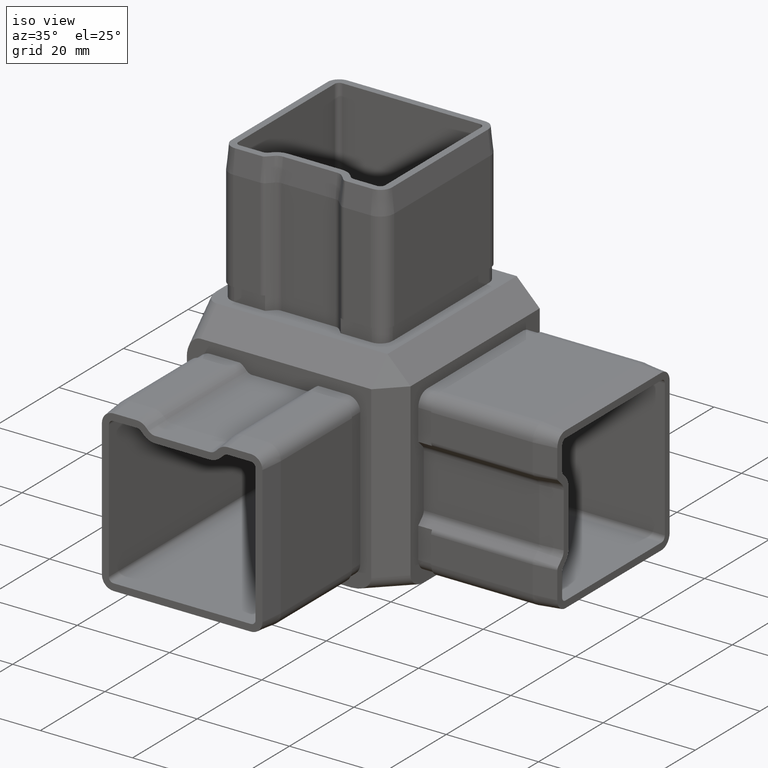
[diagram: clean part render]
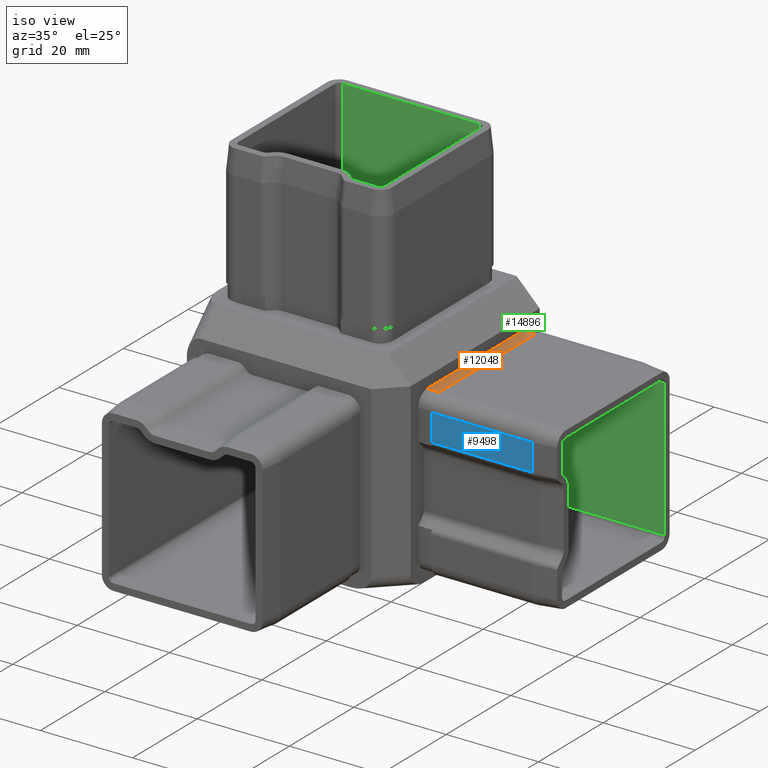
[diagram: same view with three faces highlighted in distinct colors, each labeled with its STEP entity id]
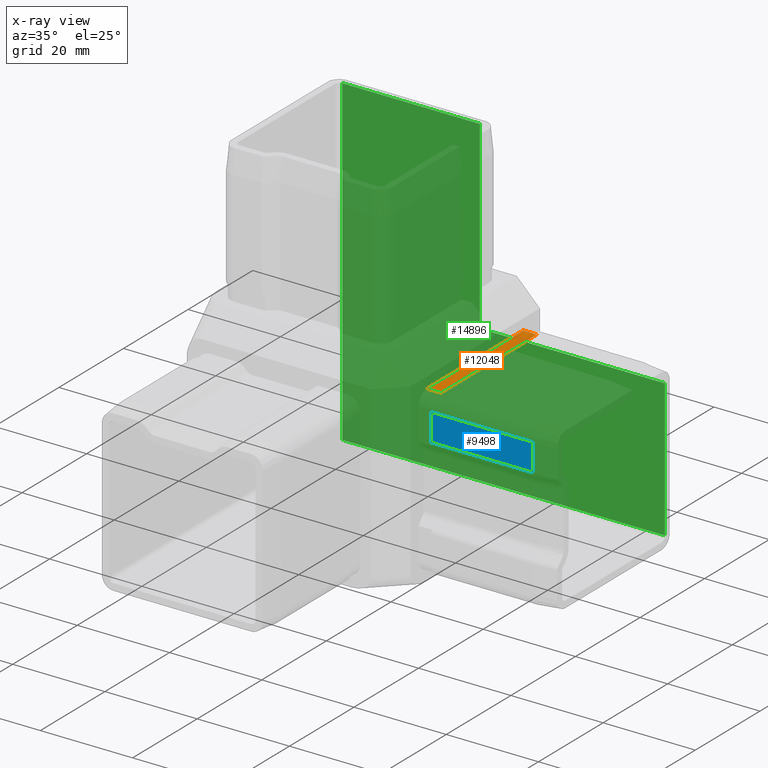
[diagram: x-ray of the same camera — body ghosted, the three highlighted faces saturated]
A machine part, iso view with three faces highlighted in distinct colors.
The next image is the same camera in x-ray (body ghosted, the three faces saturated) — at least one of them is partly hidden behind the body in this view.
Their STEP definitions:

[orange] entity #12048 — the highlighted planar face has unit normal (0, -0, 1).
#1062 = EDGE_CURVE ( 'NONE', #14799, #3133, #3084, .T. ) ;
#1876 = CARTESIAN_POINT ( 'NONE',  ( 25.50000000000000400, -12.40000000000000200, 15.09999999999999400 ) ) ;
#2153 = VECTOR ( 'NONE', #7245, 1000.000000000000000 ) ;
#2474 = ORIENTED_EDGE ( 'NONE', *, *, #6389, .T. ) ;
#2592 = LINE ( 'NONE', #10003, #2153 ) ;
#3084 = LINE ( 'NONE', #1876, #17591 ) ;
#3133 = VERTEX_POINT ( 'NONE', #7703 ) ;
#3662 = VERTEX_POINT ( 'NONE', #18186 ) ;
#4089 = PLANE ( 'NONE',  #17671 ) ;
#5608 = EDGE_LOOP ( 'NONE', ( #2474, #13633, #17023, #15169 ) ) ;
#6389 = EDGE_CURVE ( 'NONE', #14356, #3662, #18687, .T. ) ;
#6559 = EDGE_CURVE ( 'NONE', #3662, #3133, #2592, .T. ) ;
#7245 = DIRECTION ( 'NONE',  ( 1.164243943608595400E-016, -1.000000000000000000, -1.164243943608595400E-016 ) ) ;
#7703 = CARTESIAN_POINT ( 'NONE',  ( 22.50000000000000400, -12.40000000000000200, 15.09999999999999400 ) ) ;
#7927 = EDGE_CURVE ( 'NONE', #14356, #14799, #18406, .T. ) ;
#7960 = CARTESIAN_POINT ( 'NONE',  ( 25.50000000000000400, -12.40000000000000200, 15.09999999999999400 ) ) ;
#8381 = DIRECTION ( 'NONE',  ( 1.000000000000000000, 0.0000000000000000000, -4.440892098500626200E-016 ) ) ;
#9888 = DIRECTION ( 'NONE',  ( 4.440892098500626200E-016, -1.164243943608594900E-016, 1.000000000000000000 ) ) ;
#10003 = CARTESIAN_POINT ( 'NONE',  ( 22.50000000000000000, 17.39999999999999900, 15.09999999999999800 ) ) ;
#10108 = DIRECTION ( 'NONE',  ( 1.164243943608595400E-016, -1.000000000000000000, -1.164243943608595400E-016 ) ) ;
#12048 = ADVANCED_FACE ( 'NONE', ( #12854 ), #4089, .T. ) ;
#12854 = FACE_OUTER_BOUND ( 'NONE', #5608, .T. ) ;
#13633 = ORIENTED_EDGE ( 'NONE', *, *, #6559, .T. ) ;
#14334 = VECTOR ( 'NONE', #18508, 1000.000000000000000 ) ;
#14356 = VERTEX_POINT ( 'NONE', #18017 ) ;
#14469 = CARTESIAN_POINT ( 'NONE',  ( 25.50000000000000000, 17.39999999999999900, 15.09999999999999800 ) ) ;
#14799 = VERTEX_POINT ( 'NONE', #7960 ) ;
#15169 = ORIENTED_EDGE ( 'NONE', *, *, #7927, .F. ) ;
#15508 = CARTESIAN_POINT ( 'NONE',  ( 25.50000000000000000, 17.39999999999999900, 15.09999999999999800 ) ) ;
#15606 = CARTESIAN_POINT ( 'NONE',  ( 25.50000000000000000, 17.39999999999999900, 15.09999999999999800 ) ) ;
#16373 = DIRECTION ( 'NONE',  ( -1.000000000000000000, -1.196361017915038700E-016, 4.440892098500625700E-016 ) ) ;
#17023 = ORIENTED_EDGE ( 'NONE', *, *, #1062, .F. ) ;
#17591 = VECTOR ( 'NONE', #16373, 1000.000000000000000 ) ;
#17671 = AXIS2_PLACEMENT_3D ( 'NONE', #15606, #9888, #8381 ) ;
#17725 = VECTOR ( 'NONE', #10108, 1000.000000000000000 ) ;
#18017 = CARTESIAN_POINT ( 'NONE',  ( 25.50000000000000000, 17.39999999999999900, 15.09999999999999800 ) ) ;
#18186 = CARTESIAN_POINT ( 'NONE',  ( 22.50000000000000000, 17.39999999999999900, 15.09999999999999800 ) ) ;
#18406 = LINE ( 'NONE', #14469, #17725 ) ;
#18508 = DIRECTION ( 'NONE',  ( -1.000000000000000000, -1.196361017915038700E-016, 4.440892098500625700E-016 ) ) ;
#18687 = LINE ( 'NONE', #15508, #14334 ) ;

[blue] entity #9498 — the highlighted planar face has unit normal (0, -1, 0).
#563 = EDGE_LOOP ( 'NONE', ( #11996, #3286, #667, #6424 ) ) ;
#667 = ORIENTED_EDGE ( 'NONE', *, *, #10253, .T. ) ;
#939 = DIRECTION ( 'NONE',  ( -1.000000000000000000, -1.196361017915039200E-016, 4.440892098500625200E-016 ) ) ;
#1022 = VERTEX_POINT ( 'NONE', #13181 ) ;
#1142 = LINE ( 'NONE', #9652, #11985 ) ;
#1390 = CARTESIAN_POINT ( 'NONE',  ( 47.50000000000002100, -15.39999999999999900, 12.39999999999998800 ) ) ;
#1705 = LINE ( 'NONE', #7039, #13009 ) ;
#2016 = DIRECTION ( 'NONE',  ( -1.181106743071379000E-015, 5.905533715356895100E-016, -1.000000000000000000 ) ) ;
#2560 = PLANE ( 'NONE',  #10623 ) ;
#2684 = DIRECTION ( 'NONE',  ( 0.0000000000000000000, -1.756405839763409100E-016, -1.000000000000000000 ) ) ;
#3286 = ORIENTED_EDGE ( 'NONE', *, *, #10582, .F. ) ;
#4079 = CARTESIAN_POINT ( 'NONE',  ( 52.50000000000000700, -15.39999999999999500, 12.39999999999998300 ) ) ;
#4992 = FACE_OUTER_BOUND ( 'NONE', #563, .T. ) ;
#5556 = CARTESIAN_POINT ( 'NONE',  ( 25.50000000000000400, -15.40000000000000000, 6.525091618846268200 ) ) ;
#6424 = ORIENTED_EDGE ( 'NONE', *, *, #7831, .T. ) ;
#7039 = CARTESIAN_POINT ( 'NONE',  ( 52.50000000000000700, -15.39999999999999500, 6.525091618846254900 ) ) ;
#7113 = DIRECTION ( 'NONE',  ( 1.196361017915040000E-016, -1.000000000000000000, 1.756405839763409100E-016 ) ) ;
#7831 = EDGE_CURVE ( 'NONE', #15604, #10372, #15911, .T. ) ;
#9498 = ADVANCED_FACE ( 'NONE', ( #4992 ), #2560, .T. ) ;
#9652 = CARTESIAN_POINT ( 'NONE',  ( 52.50000000000000700, -15.39999999999999500, 12.39999999999998300 ) ) ;
#10253 = EDGE_CURVE ( 'NONE', #18276, #15604, #1142, .T. ) ;
#10372 = VERTEX_POINT ( 'NONE', #5556 ) ;
#10582 = EDGE_CURVE ( 'NONE', #18276, #1022, #15622, .T. ) ;
#10623 = AXIS2_PLACEMENT_3D ( 'NONE', #4079, #7113, #2684 ) ;
#10830 = CARTESIAN_POINT ( 'NONE',  ( 25.50000000000000400, -15.40000000000000200, 12.39999999999999700 ) ) ;
#10842 = VECTOR ( 'NONE', #2016, 1000.000000000000000 ) ;
#11985 = VECTOR ( 'NONE', #939, 1000.000000000000000 ) ;
#11996 = ORIENTED_EDGE ( 'NONE', *, *, #14515, .F. ) ;
#12486 = VECTOR ( 'NONE', #13150, 1000.000000000000000 ) ;
#13009 = VECTOR ( 'NONE', #17134, 1000.000000000000000 ) ;
#13150 = DIRECTION ( 'NONE',  ( -2.328487887217190900E-016, 1.746365915412893200E-016, -1.000000000000000000 ) ) ;
#13181 = CARTESIAN_POINT ( 'NONE',  ( 47.50000000000001400, -15.39999999999999500, 6.525091618846258400 ) ) ;
#14515 = EDGE_CURVE ( 'NONE', #1022, #10372, #1705, .T. ) ;
#15604 = VERTEX_POINT ( 'NONE', #10830 ) ;
#15622 = LINE ( 'NONE', #16520, #10842 ) ;
#15911 = LINE ( 'NONE', #18509, #12486 ) ;
#16520 = CARTESIAN_POINT ( 'NONE',  ( 47.50000000000002100, -15.39999999999999900, 12.39999999999998800 ) ) ;
#17134 = DIRECTION ( 'NONE',  ( -1.000000000000000000, -1.196361017915039200E-016, 4.440892098500625200E-016 ) ) ;
#18276 = VERTEX_POINT ( 'NONE', #1390 ) ;
#18509 = CARTESIAN_POINT ( 'NONE',  ( 25.50000000000000400, -15.40000000000000200, 12.39999999999999700 ) ) ;

[green] entity #14896 — the highlighted planar face has unit normal (0, -1, 0).
#290 = CARTESIAN_POINT ( 'NONE',  ( -17.39999999999999100, 18.39999999999999900, 52.50000000000000000 ) ) ;
#304 = ORIENTED_EDGE ( 'NONE', *, *, #4237, .T. ) ;
#329 = FACE_OUTER_BOUND ( 'NONE', #5124, .T. ) ;
#517 = CARTESIAN_POINT ( 'NONE',  ( 12.40000000000000700, 18.39999999999999900, -17.40000000000002000 ) ) ;
#1090 = PLANE ( 'NONE',  #15896 ) ;
#1386 = EDGE_CURVE ( 'NONE', #3843, #9290, #12581, .T. ) ;
#1433 = LINE ( 'NONE', #10819, #6639 ) ;
#2187 = VERTEX_POINT ( 'NONE', #4386 ) ;
#2268 = CARTESIAN_POINT ( 'NONE',  ( 12.40000000000000700, 18.39999999999999900, 52.50000000000000000 ) ) ;
#2908 = VERTEX_POINT ( 'NONE', #17243 ) ;
#3277 = VERTEX_POINT ( 'NONE', #6703 ) ;
#3421 = LINE ( 'NONE', #3755, #8860 ) ;
#3755 = CARTESIAN_POINT ( 'NONE',  ( 12.40000000000000700, 18.39999999999999900, -17.39999999999999100 ) ) ;
#3843 = VERTEX_POINT ( 'NONE', #6005 ) ;
#3874 = VECTOR ( 'NONE', #4659, 1000.000000000000000 ) ;
#4051 = DIRECTION ( 'NONE',  ( 0.0000000000000000000, -0.0000000000000000000, -1.000000000000000000 ) ) ;
#4107 = CARTESIAN_POINT ( 'NONE',  ( -17.39999999999999100, 18.39999999999999900, 52.50000000000000000 ) ) ;
#4237 = EDGE_CURVE ( 'NONE', #2908, #9290, #3421, .T. ) ;
#4386 = CARTESIAN_POINT ( 'NONE',  ( 52.50000000000000000, 18.40000000000000600, 12.39999999999998600 ) ) ;
#4659 = DIRECTION ( 'NONE',  ( -0.0000000000000000000, -0.0000000000000000000, -1.000000000000000000 ) ) ;
#4927 = DIRECTION ( 'NONE',  ( -0.0000000000000000000, -0.0000000000000000000, -1.000000000000000000 ) ) ;
#5124 = EDGE_LOOP ( 'NONE', ( #6772, #304, #15996, #12555, #14168, #15317, #6226 ) ) ;
#5692 = DIRECTION ( 'NONE',  ( -1.000000000000000000, -0.0000000000000000000, -0.0000000000000000000 ) ) ;
#5761 = CARTESIAN_POINT ( 'NONE',  ( 52.50000000000000000, 18.40000000000000600, 12.39999999999998600 ) ) ;
#6005 = CARTESIAN_POINT ( 'NONE',  ( 52.49999999999999300, 18.40000000000000900, -17.40000000000001300 ) ) ;
#6226 = ORIENTED_EDGE ( 'NONE', *, *, #7611, .T. ) ;
#6639 = VECTOR ( 'NONE', #9238, 1000.000000000000000 ) ;
#6703 = CARTESIAN_POINT ( 'NONE',  ( -17.39999999999999100, 18.39999999999999900, 52.50000000000000000 ) ) ;
#6772 = ORIENTED_EDGE ( 'NONE', *, *, #17206, .T. ) ;
#7428 = EDGE_CURVE ( 'NONE', #2187, #3843, #1433, .T. ) ;
#7611 = EDGE_CURVE ( 'NONE', #16523, #3277, #12947, .T. ) ;
#8860 = VECTOR ( 'NONE', #10940, 1000.000000000000000 ) ;
#8861 = LINE ( 'NONE', #5761, #18172 ) ;
#9024 = EDGE_CURVE ( 'NONE', #2187, #13729, #8861, .T. ) ;
#9238 = DIRECTION ( 'NONE',  ( -2.220446049250312600E-016, 1.196361017915038700E-016, -1.000000000000000000 ) ) ;
#9290 = VERTEX_POINT ( 'NONE', #517 ) ;
#9753 = VECTOR ( 'NONE', #4927, 1000.000000000000000 ) ;
#10819 = CARTESIAN_POINT ( 'NONE',  ( 52.49999999999999300, 18.40000000000000900, -17.40000000000001300 ) ) ;
#10940 = DIRECTION ( 'NONE',  ( 1.000000000000000000, -0.0000000000000000000, -0.0000000000000000000 ) ) ;
#11191 = DIRECTION ( 'NONE',  ( -1.000000000000000000, -1.196361017915039200E-016, 4.440892098500625200E-016 ) ) ;
#11197 = CARTESIAN_POINT ( 'NONE',  ( -17.39999999999999100, 18.39999999999999900, 52.50000000000000000 ) ) ;
#12555 = ORIENTED_EDGE ( 'NONE', *, *, #7428, .F. ) ;
#12581 = LINE ( 'NONE', #17815, #13039 ) ;
#12704 = DIRECTION ( 'NONE',  ( 0.0000000000000000000, -1.000000000000000000, 0.0000000000000000000 ) ) ;
#12947 = LINE ( 'NONE', #11197, #15683 ) ;
#13039 = VECTOR ( 'NONE', #14934, 1000.000000000000000 ) ;
#13729 = VERTEX_POINT ( 'NONE', #16380 ) ;
#14168 = ORIENTED_EDGE ( 'NONE', *, *, #9024, .T. ) ;
#14896 = ADVANCED_FACE ( 'NONE', ( #329 ), #1090, .T. ) ;
#14934 = DIRECTION ( 'NONE',  ( -1.000000000000000000, -1.196361017915039200E-016, 4.440892098500625200E-016 ) ) ;
#14962 = LINE ( 'NONE', #290, #3874 ) ;
#15317 = ORIENTED_EDGE ( 'NONE', *, *, #17020, .F. ) ;
#15683 = VECTOR ( 'NONE', #5692, 1000.000000000000000 ) ;
#15896 = AXIS2_PLACEMENT_3D ( 'NONE', #4107, #12704, #4051 ) ;
#15996 = ORIENTED_EDGE ( 'NONE', *, *, #1386, .F. ) ;
#16380 = CARTESIAN_POINT ( 'NONE',  ( 12.40000000000000700, 18.39999999999999900, 12.40000000000000000 ) ) ;
#16523 = VERTEX_POINT ( 'NONE', #18717 ) ;
#16591 = LINE ( 'NONE', #2268, #9753 ) ;
#17020 = EDGE_CURVE ( 'NONE', #16523, #13729, #16591, .T. ) ;
#17206 = EDGE_CURVE ( 'NONE', #3277, #2908, #14962, .T. ) ;
#17243 = CARTESIAN_POINT ( 'NONE',  ( -17.39999999999999100, 18.39999999999999900, -17.39999999999999100 ) ) ;
#17815 = CARTESIAN_POINT ( 'NONE',  ( 52.49999999999999300, 18.40000000000000900, -17.40000000000001300 ) ) ;
#18172 = VECTOR ( 'NONE', #11191, 1000.000000000000000 ) ;
#18717 = CARTESIAN_POINT ( 'NONE',  ( 12.40000000000000700, 18.39999999999999900, 52.50000000000000000 ) ) ;